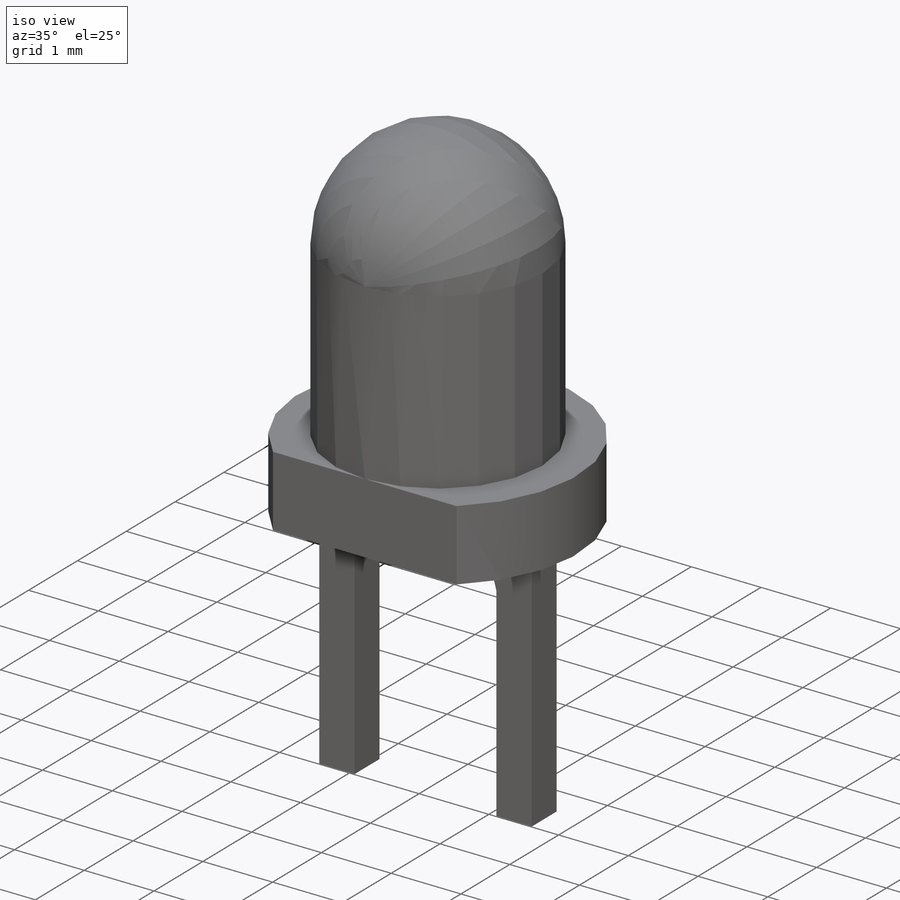
[diagram: iso view]
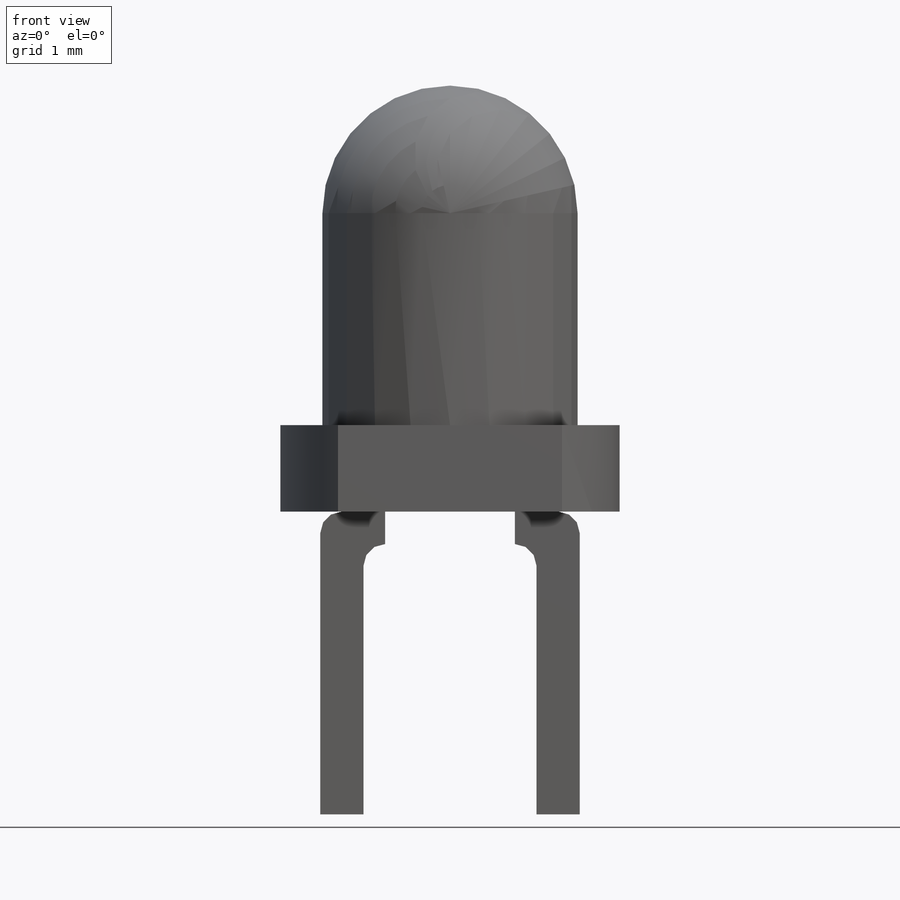
[diagram: front view]
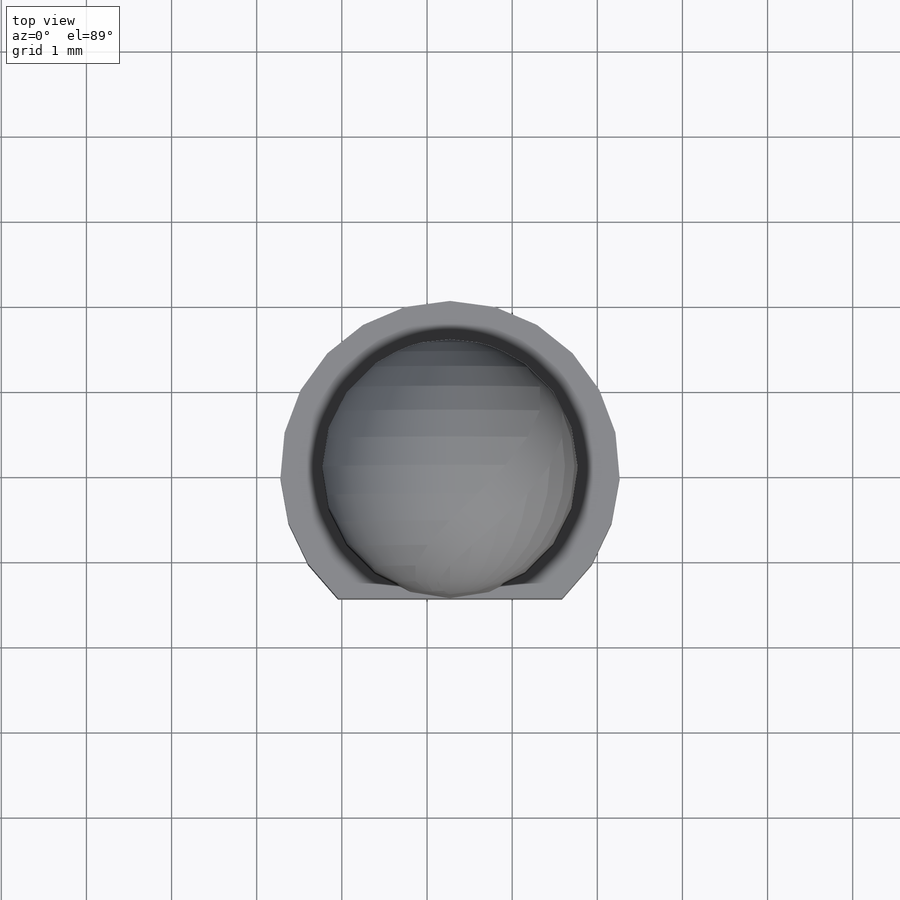
[diagram: top view]
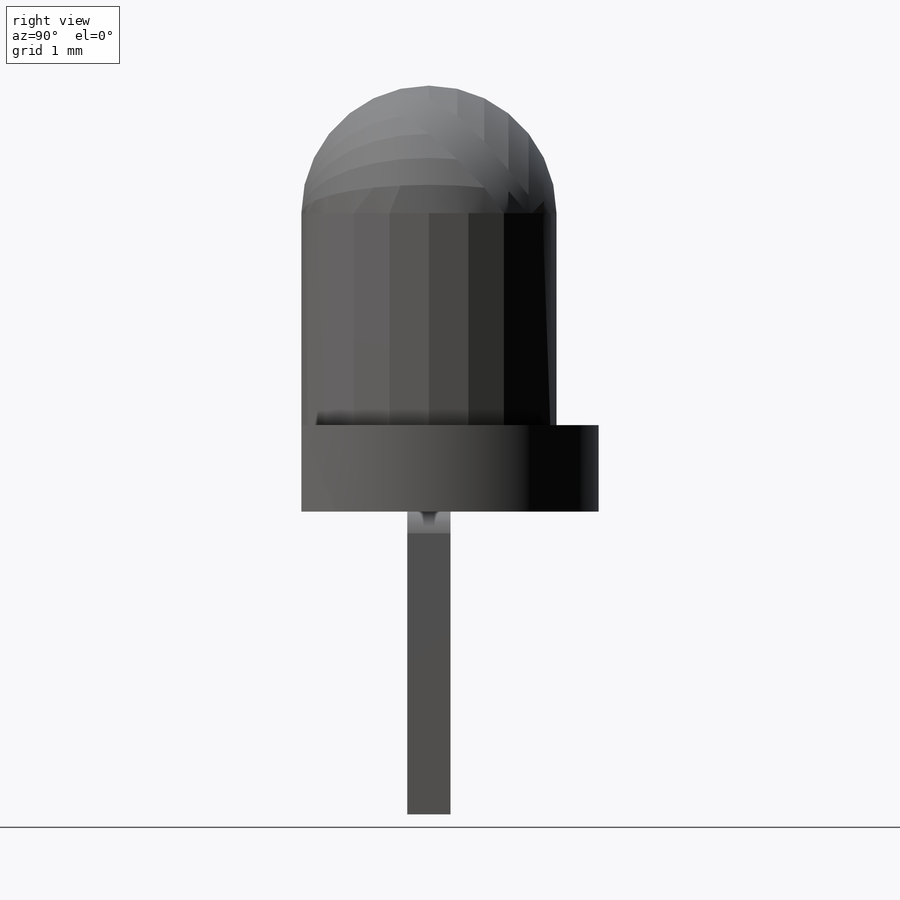
[diagram: right view]
SOLIDWORKS PART (.sldprt)
format: sldprt  version: not decoded by parser v0  size: 235,008 bytes
history: native  units: mm
features: sketch x6, extrude x4, fillet x2, material x1, cut_extrude x1 (+12 scaffold rows collapsed)
feature tree (26):
  scaffold x12  (default folders/planes/origin — collapsed)
  material  "Material <not specified>"
  sketch  "Sketch1"  dims[D1=0.254mm D2=0.254mm D3=3.048mm D4=0.254mm]
  extrude  "Base-Extrude"  Depth=0.381mm
  sketch  "Sketch2"
  extrude  "Boss-Extrude1"  Depth=3.175mm
  fillet  "Fillet5"  Radius=0.254mm
  sketch  "Sketch3"  dims[D1=3.9878mm D2=2.9972mm]
  extrude  "Boss-Extrude2"  Depth=1.016mm
  sketch  "Sketch4"
  extrude  "Boss-Extrude3"  Depth=3.9878mm
  fillet  "Fillet4"  Radius=1.4986mm
  sketch  "Sketch6"
  cut_extrude  "Cut-Extrude1"  [1 undecoded]
  sketch  "Component_Outline"  dims[D1=~1.989536mm D2=1.9939mm D3=1.9939mm]
decode coverage: 9 of 13 modeling features carry decoded parameters
note: ~ marks probable driven/reference dimensions
note: 1 parameter value undecoded
note: suppression state not decoded; provenance and decode notes live in map.json
